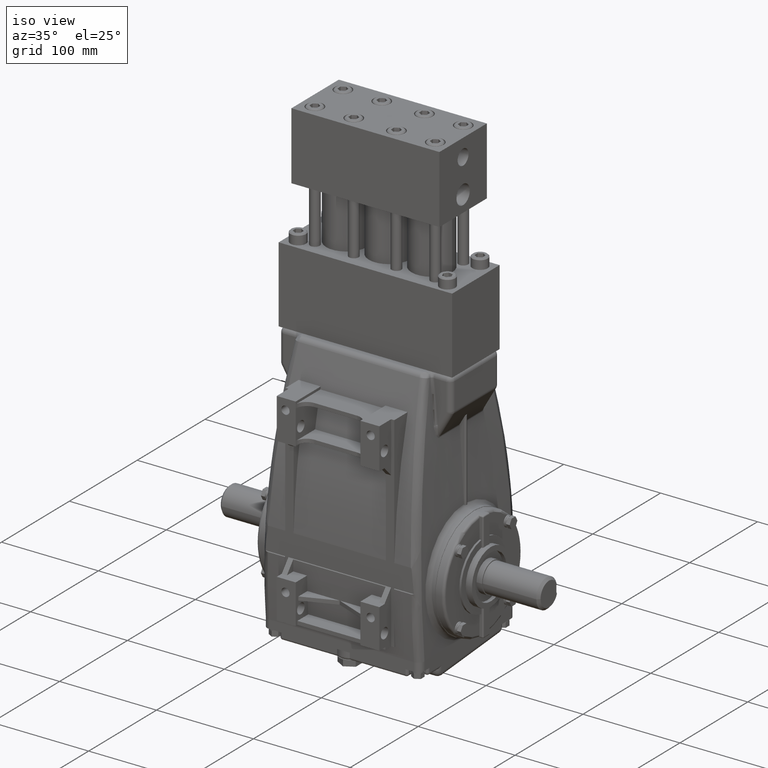
[diagram: clean part render]
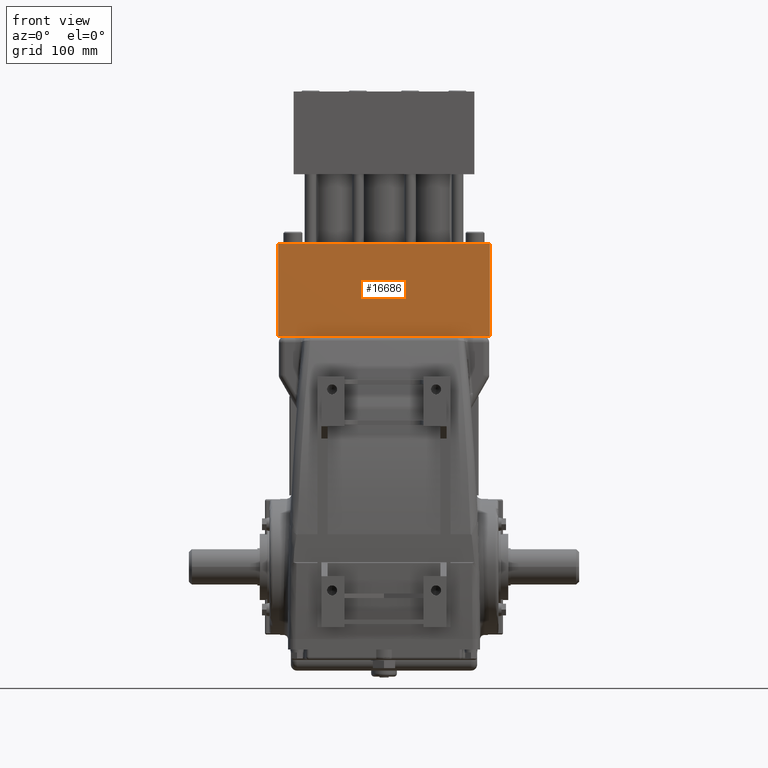
[diagram: tour spotlight — one face highlighted and labeled with its STEP entity id]
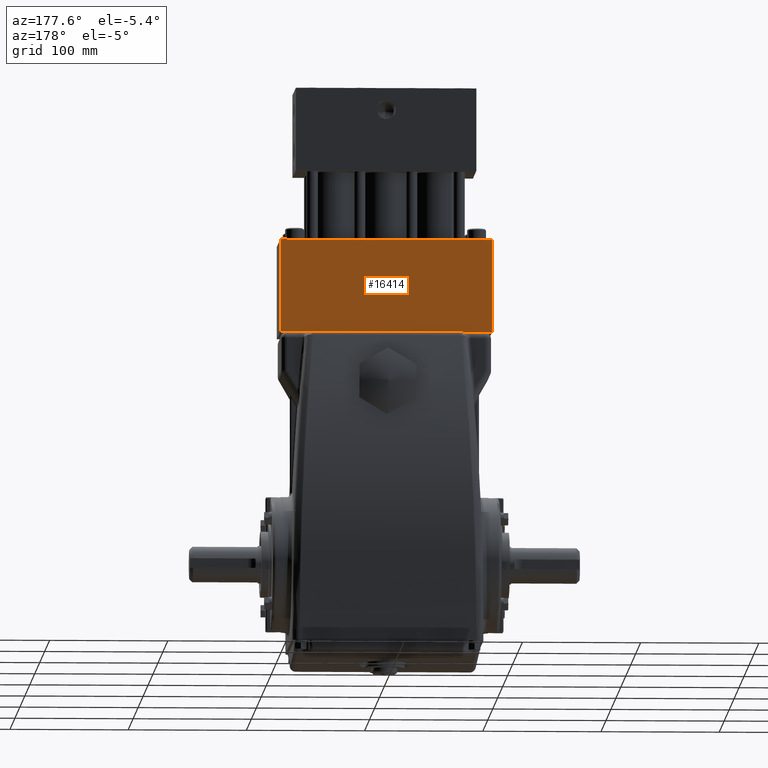
[diagram: tour spotlight — one face highlighted and labeled with its STEP entity id]
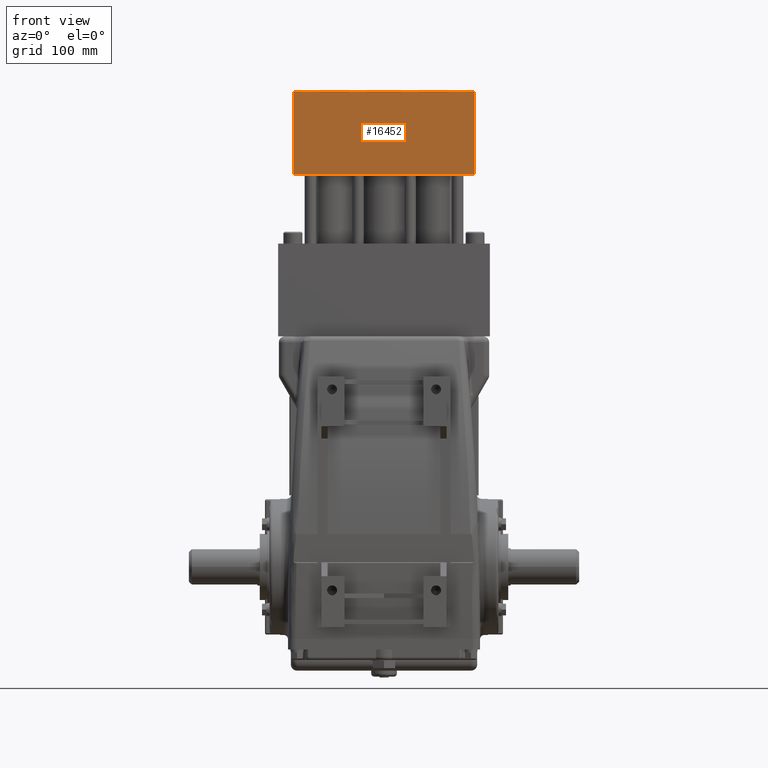
[diagram: tour spotlight — one face highlighted and labeled with its STEP entity id]
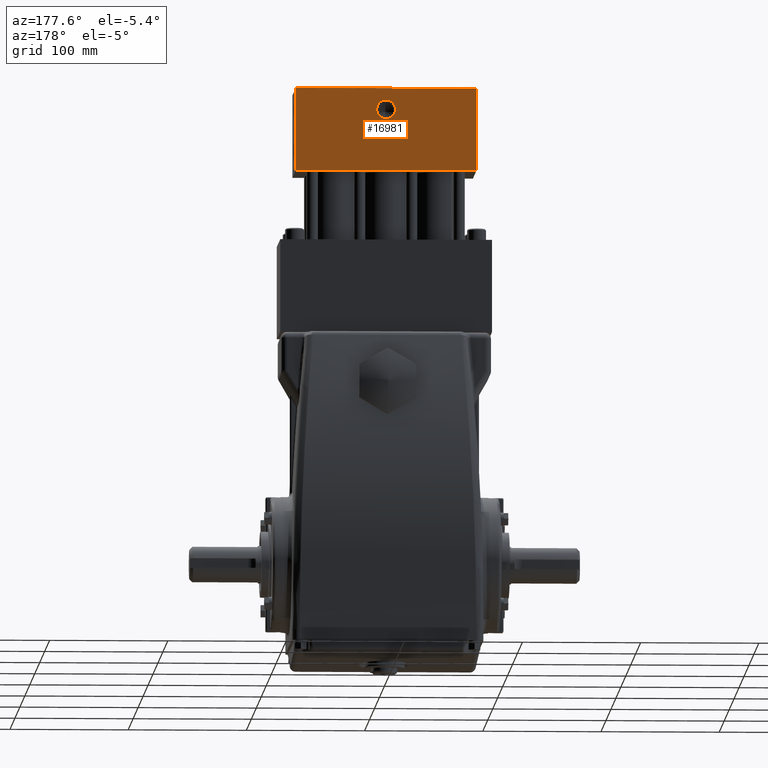
[diagram: tour spotlight — one face highlighted and labeled with its STEP entity id]
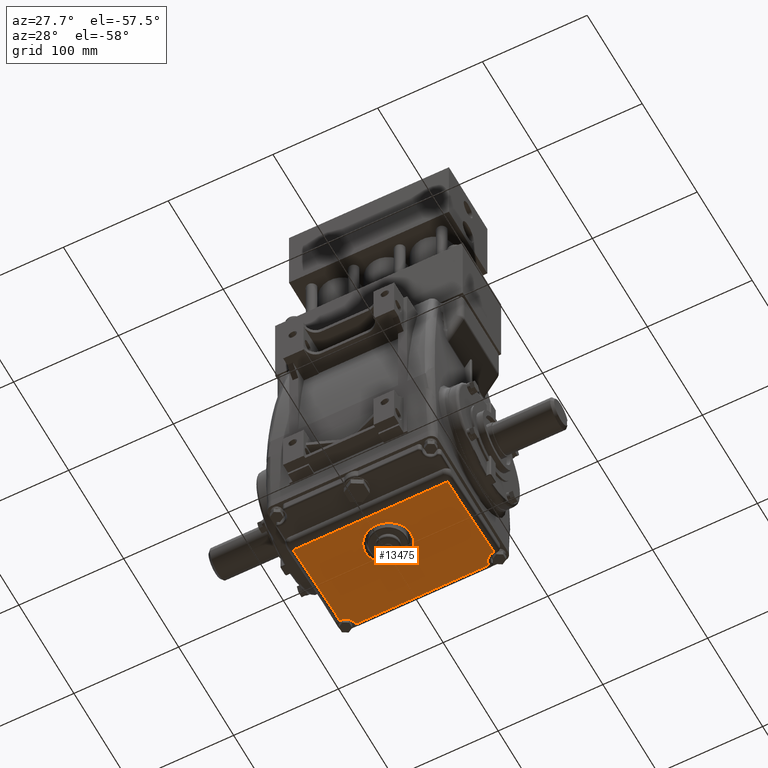
[diagram: tour spotlight — one face highlighted and labeled with its STEP entity id]
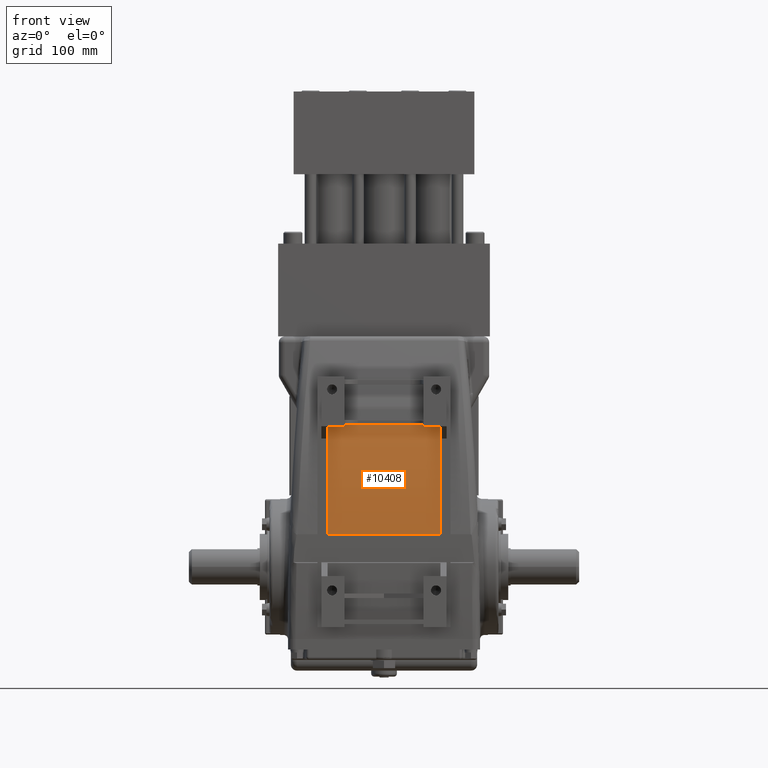
[diagram: tour spotlight — one face highlighted and labeled with its STEP entity id]
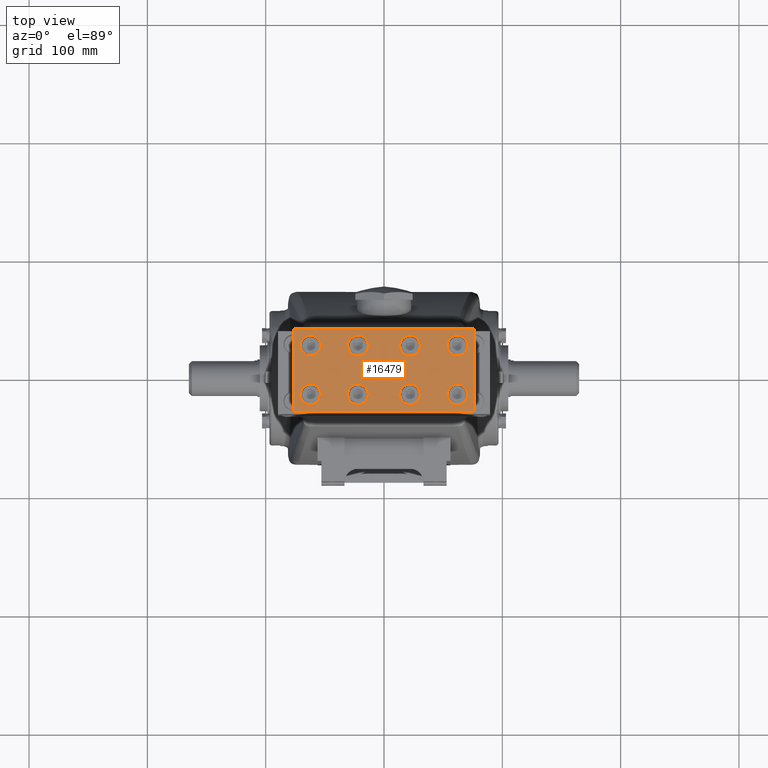
[diagram: tour spotlight — one face highlighted and labeled with its STEP entity id]
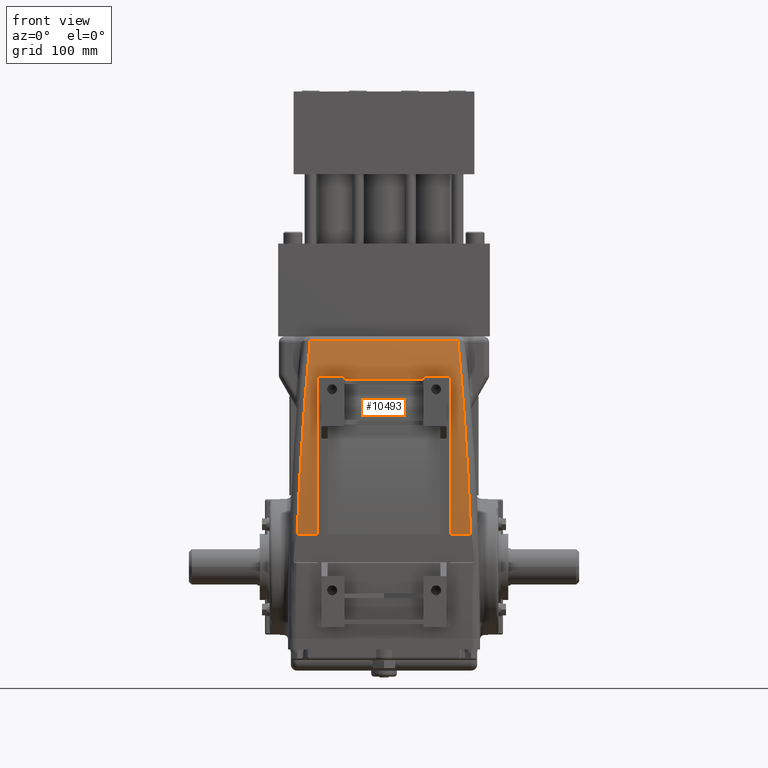
[diagram: tour spotlight — one face highlighted and labeled with its STEP entity id]
A machine part: a face-by-face anatomy tour. The part has 1147 B-rep faces; the first image is the clean iso view, then the 8 largest visible faces are spotlighted one at a time (largest first), each with its STEP entity span.

Face 1 — front view, entity #16686. In plain terms, the highlighted planar face has unit normal (0, -1, 0).
Definition (entity closure, byte-faithful):
#16411 = ORIENTED_EDGE ( 'NONE', *, *, #16615, .F. ) ;
#16522 = EDGE_CURVE ( 'NONE', #16617, #16523, #35112, .T. ) ;
#16523 = VERTEX_POINT ( 'NONE', #34983 ) ;
#16535 = EDGE_CURVE ( 'NONE', #16536, #16616, #35095, .T. ) ;
#16536 = VERTEX_POINT ( 'NONE', #35088 ) ;
#16615 = EDGE_CURVE ( 'NONE', #16616, #16617, #35330, .T. ) ;
#16616 = VERTEX_POINT ( 'NONE', #35326 ) ;
#16617 = VERTEX_POINT ( 'NONE', #35325 ) ;
#16671 = EDGE_CURVE ( 'NONE', #16523, #16536, #35219, .T. ) ;
#16686 = ADVANCED_FACE ( 'NONE', ( #35387 ), #35381, .T. ) ;
#16687 = EDGE_LOOP ( 'NONE', ( #16688, #16689, #16690, #16411 ) ) ;
#16688 = ORIENTED_EDGE ( 'NONE', *, *, #16535, .F. ) ;
#16689 = ORIENTED_EDGE ( 'NONE', *, *, #16671, .F. ) ;
#16690 = ORIENTED_EDGE ( 'NONE', *, *, #16522, .F. ) ;
#34983 = CARTESIAN_POINT ( 'NONE',  ( 3.524999999999999900, -1.375000000000000000, -1.295063990098325800E-015 ) ) ;
#34984 = DIRECTION ( 'NONE',  ( -3.540956569882389300E-016, 0.0000000000000000000, -1.000000000000000000 ) ) ;
#34985 = VECTOR ( 'NONE', #34984, 39.37007874015748100 ) ;
#34986 = CARTESIAN_POINT ( 'NONE',  ( 3.525000000000000800, -1.375000000000000000, 3.085999999999998500 ) ) ;
#35088 = CARTESIAN_POINT ( 'NONE',  ( -3.524999999999999900, -1.375000000000000000, 0.0000000000000000000 ) ) ;
#35089 = DIRECTION ( 'NONE',  ( -0.0000000000000000000, -0.0000000000000000000, 1.000000000000000000 ) ) ;
#35090 = VECTOR ( 'NONE', #35089, 39.37007874015748100 ) ;
#35091 = CARTESIAN_POINT ( 'NONE',  ( -3.524999999999999900, -1.375000000000000000, 3.085999999999999900 ) ) ;
#35095 = LINE ( 'NONE', #35091, #35090 ) ;
#35112 = LINE ( 'NONE', #34986, #34985 ) ;
#35216 = DIRECTION ( 'NONE',  ( -1.000000000000000000, -0.0000000000000000000, 1.836970198721030200E-016 ) ) ;
#35217 = VECTOR ( 'NONE', #35216, 39.37007874015748100 ) ;
#35218 = CARTESIAN_POINT ( 'NONE',  ( -3.524999999999999900, -1.375000000000000000, 0.0000000000000000000 ) ) ;
#35219 = LINE ( 'NONE', #35218, #35217 ) ;
#35325 = CARTESIAN_POINT ( 'NONE',  ( 3.525000000000000800, -1.375000000000000000, 3.085999999999998500 ) ) ;
#35326 = CARTESIAN_POINT ( 'NONE',  ( -3.524999999999999900, -1.375000000000000000, 3.085999999999999900 ) ) ;
#35327 = DIRECTION ( 'NONE',  ( 1.000000000000000000, 0.0000000000000000000, -1.549984677256319500E-016 ) ) ;
#35328 = VECTOR ( 'NONE', #35327, 39.37007874015748100 ) ;
#35329 = CARTESIAN_POINT ( 'NONE',  ( -3.524999999999999900, -1.375000000000000000, 3.085999999999999900 ) ) ;
#35330 = LINE ( 'NONE', #35329, #35328 ) ;
#35377 = DIRECTION ( 'NONE',  ( 0.0000000000000000000, -0.0000000000000000000, -1.000000000000000000 ) ) ;
#35378 = DIRECTION ( 'NONE',  ( 0.0000000000000000000, -1.000000000000000000, 0.0000000000000000000 ) ) ;
#35379 = CARTESIAN_POINT ( 'NONE',  ( -3.524999999999999900, -1.375000000000000000, 0.0000000000000000000 ) ) ;
#35380 = AXIS2_PLACEMENT_3D ( 'NONE', #35379, #35378, #35377 ) ;
#35381 = PLANE ( 'NONE',  #35380 ) ;
#35387 = FACE_OUTER_BOUND ( 'NONE', #16687, .T. ) ;

Face 2 — auxiliary view, entity #16414. In plain terms, the highlighted planar face has unit normal (0, -1, 0).
Definition (entity closure, byte-faithful):
#16414 = ADVANCED_FACE ( 'NONE', ( #34850 ), #34846, .F. ) ;
#16415 = ORIENTED_EDGE ( 'NONE', *, *, #16515, .T. ) ;
#16416 = ORIENTED_EDGE ( 'NONE', *, *, #16583, .T. ) ;
#16515 = EDGE_CURVE ( 'NONE', #16516, #16584, #34969, .T. ) ;
#16516 = VERTEX_POINT ( 'NONE', #34965 ) ;
#16526 = VERTEX_POINT ( 'NONE', #34978 ) ;
#16554 = VERTEX_POINT ( 'NONE', #35020 ) ;
#16583 = EDGE_CURVE ( 'NONE', #16584, #16554, #35408, .T. ) ;
#16584 = VERTEX_POINT ( 'NONE', #35404 ) ;
#16666 = EDGE_CURVE ( 'NONE', #16554, #16526, #35351, .T. ) ;
#16674 = EDGE_CURVE ( 'NONE', #16526, #16516, #35215, .T. ) ;
#16675 = EDGE_LOOP ( 'NONE', ( #16415, #16416, #16684, #16685 ) ) ;
#16684 = ORIENTED_EDGE ( 'NONE', *, *, #16666, .T. ) ;
#16685 = ORIENTED_EDGE ( 'NONE', *, *, #16674, .T. ) ;
#34845 = AXIS2_PLACEMENT_3D ( 'NONE', #34950, #34949, #34948 ) ;
#34846 = PLANE ( 'NONE',  #34845 ) ;
#34850 = FACE_OUTER_BOUND ( 'NONE', #16675, .T. ) ;
#34948 = DIRECTION ( 'NONE',  ( 0.0000000000000000000, -0.0000000000000000000, -1.000000000000000000 ) ) ;
#34949 = DIRECTION ( 'NONE',  ( 0.0000000000000000000, -1.000000000000000000, 0.0000000000000000000 ) ) ;
#34950 = CARTESIAN_POINT ( 'NONE',  ( -3.524999999999999900, 1.375000000000000000, 0.0000000000000000000 ) ) ;
#34965 = CARTESIAN_POINT ( 'NONE',  ( -3.524999999999999900, 1.375000000000000000, 0.0000000000000000000 ) ) ;
#34966 = DIRECTION ( 'NONE',  ( -0.0000000000000000000, -0.0000000000000000000, 1.000000000000000000 ) ) ;
#34967 = VECTOR ( 'NONE', #34966, 39.37007874015748100 ) ;
#34968 = CARTESIAN_POINT ( 'NONE',  ( -3.524999999999999900, 1.375000000000000000, 3.085999999999999900 ) ) ;
#34969 = LINE ( 'NONE', #34968, #34967 ) ;
#34978 = CARTESIAN_POINT ( 'NONE',  ( 3.524999999999999900, 1.375000000000000000, -1.295063990098325800E-015 ) ) ;
#35020 = CARTESIAN_POINT ( 'NONE',  ( 3.525000000000000800, 1.375000000000000000, 3.085999999999998500 ) ) ;
#35213 = DIRECTION ( 'NONE',  ( -1.000000000000000000, -0.0000000000000000000, 1.836970198721030200E-016 ) ) ;
#35214 = CARTESIAN_POINT ( 'NONE',  ( -3.524999999999999900, 1.375000000000000000, 0.0000000000000000000 ) ) ;
#35215 = LINE ( 'NONE', #35214, #35389 ) ;
#35348 = DIRECTION ( 'NONE',  ( -3.540956569882389300E-016, 0.0000000000000000000, -1.000000000000000000 ) ) ;
#35349 = VECTOR ( 'NONE', #35348, 39.37007874015748100 ) ;
#35350 = CARTESIAN_POINT ( 'NONE',  ( 3.525000000000000800, 1.375000000000000000, 3.085999999999998500 ) ) ;
#35351 = LINE ( 'NONE', #35350, #35349 ) ;
#35389 = VECTOR ( 'NONE', #35213, 39.37007874015748100 ) ;
#35404 = CARTESIAN_POINT ( 'NONE',  ( -3.524999999999999900, 1.375000000000000000, 3.085999999999999900 ) ) ;
#35405 = DIRECTION ( 'NONE',  ( 1.000000000000000000, 0.0000000000000000000, -1.549984677256319500E-016 ) ) ;
#35406 = VECTOR ( 'NONE', #35405, 39.37007874015748100 ) ;
#35407 = CARTESIAN_POINT ( 'NONE',  ( -3.524999999999999900, 1.375000000000000000, 3.085999999999999900 ) ) ;
#35408 = LINE ( 'NONE', #35407, #35406 ) ;

Face 3 — front view, entity #16452. In plain terms, the highlighted planar face has unit normal (0, 1, 0).
Definition (entity closure, byte-faithful):
#16448 = EDGE_CURVE ( 'NONE', #16542, #16464, #35135, .T. ) ;
#16452 = ADVANCED_FACE ( 'NONE', ( #35078 ), #35077, .F. ) ;
#16453 = EDGE_LOOP ( 'NONE', ( #16454, #16455, #16457, #16632 ) ) ;
#16454 = ORIENTED_EDGE ( 'NONE', *, *, #16887, .T. ) ;
#16455 = ORIENTED_EDGE ( 'NONE', *, *, #16456, .F. ) ;
#16456 = EDGE_CURVE ( 'NONE', #16545, #16629, #35002, .T. ) ;
#16457 = ORIENTED_EDGE ( 'NONE', *, *, #16544, .F. ) ;
#16464 = VERTEX_POINT ( 'NONE', #35168 ) ;
#16542 = VERTEX_POINT ( 'NONE', #35032 ) ;
#16544 = EDGE_CURVE ( 'NONE', #16542, #16545, #35031, .T. ) ;
#16545 = VERTEX_POINT ( 'NONE', #35027 ) ;
#16629 = VERTEX_POINT ( 'NONE', #35251 ) ;
#16632 = ORIENTED_EDGE ( 'NONE', *, *, #16448, .T. ) ;
#16887 = EDGE_CURVE ( 'NONE', #16464, #16629, #35797, .T. ) ;
#35000 = DIRECTION ( 'NONE',  ( -0.0000000000000000000, -0.0000000000000000000, -1.000000000000000000 ) ) ;
#35001 = CARTESIAN_POINT ( 'NONE',  ( 3.006500000000000400, -1.375000000000000000, 8.147000000000000200 ) ) ;
#35002 = LINE ( 'NONE', #35001, #35013 ) ;
#35013 = VECTOR ( 'NONE', #35000, 39.37007874015748100 ) ;
#35027 = CARTESIAN_POINT ( 'NONE',  ( 3.006500000000000400, -1.375000000000000000, 8.147000000000000200 ) ) ;
#35028 = DIRECTION ( 'NONE',  ( 1.000000000000000000, 0.0000000000000000000, 0.0000000000000000000 ) ) ;
#35029 = VECTOR ( 'NONE', #35028, 39.37007874015748100 ) ;
#35030 = CARTESIAN_POINT ( 'NONE',  ( -3.006500000000000000, -1.375000000000000000, 8.147000000000000200 ) ) ;
#35031 = LINE ( 'NONE', #35030, #35029 ) ;
#35032 = CARTESIAN_POINT ( 'NONE',  ( -3.006500000000000000, -1.375000000000000000, 8.147000000000000200 ) ) ;
#35076 = AXIS2_PLACEMENT_3D ( 'NONE', #35108, #35107, #35106 ) ;
#35077 = PLANE ( 'NONE',  #35076 ) ;
#35078 = FACE_OUTER_BOUND ( 'NONE', #16453, .T. ) ;
#35106 = DIRECTION ( 'NONE',  ( 0.0000000000000000000, -0.0000000000000000000, 1.000000000000000000 ) ) ;
#35107 = DIRECTION ( 'NONE',  ( 0.0000000000000000000, 1.000000000000000000, 0.0000000000000000000 ) ) ;
#35108 = CARTESIAN_POINT ( 'NONE',  ( -3.006500000000000000, -1.375000000000000000, 8.147000000000000200 ) ) ;
#35132 = DIRECTION ( 'NONE',  ( -0.0000000000000000000, -0.0000000000000000000, -1.000000000000000000 ) ) ;
#35133 = VECTOR ( 'NONE', #35132, 39.37007874015748100 ) ;
#35134 = CARTESIAN_POINT ( 'NONE',  ( -3.006500000000000000, -1.375000000000000000, 8.147000000000000200 ) ) ;
#35135 = LINE ( 'NONE', #35134, #35133 ) ;
#35168 = CARTESIAN_POINT ( 'NONE',  ( -3.006500000000000000, -1.375000000000000000, 5.393999999999999200 ) ) ;
#35251 = CARTESIAN_POINT ( 'NONE',  ( 3.006500000000000400, -1.375000000000000000, 5.393999999999999200 ) ) ;
#35794 = DIRECTION ( 'NONE',  ( 1.000000000000000000, 0.0000000000000000000, 0.0000000000000000000 ) ) ;
#35795 = VECTOR ( 'NONE', #35794, 39.37007874015748100 ) ;
#35796 = CARTESIAN_POINT ( 'NONE',  ( -3.006500000000000000, -1.375000000000000000, 5.393999999999999200 ) ) ;
#35797 = LINE ( 'NONE', #35796, #35795 ) ;

Face 4 — auxiliary view, entity #16981. In plain terms, the highlighted planar face has unit normal (0, -1, 0).
Definition (entity closure, byte-faithful):
#16424 = VERTEX_POINT ( 'NONE', #34865 ) ;
#16426 = EDGE_CURVE ( 'NONE', #16424, #16541, #34864, .T. ) ;
#16451 = EDGE_CURVE ( 'NONE', #16541, #16463, #35105, .T. ) ;
#16463 = VERTEX_POINT ( 'NONE', #35169 ) ;
#16466 = EDGE_CURVE ( 'NONE', #16467, #16463, #35167, .T. ) ;
#16467 = VERTEX_POINT ( 'NONE', #35085 ) ;
#16541 = VERTEX_POINT ( 'NONE', #35033 ) ;
#16968 = ORIENTED_EDGE ( 'NONE', *, *, #16988, .T. ) ;
#16979 = ORIENTED_EDGE ( 'NONE', *, *, #16451, .F. ) ;
#16980 = ORIENTED_EDGE ( 'NONE', *, *, #16426, .F. ) ;
#16981 = ADVANCED_FACE ( 'NONE', ( #35667, #35666 ), #35671, .F. ) ;
#16982 = ORIENTED_EDGE ( 'NONE', *, *, #16984, .F. ) ;
#16984 = EDGE_CURVE ( 'NONE', #32712, #32709, #35764, .T. ) ;
#16985 = ORIENTED_EDGE ( 'NONE', *, *, #32711, .F. ) ;
#16986 = EDGE_LOOP ( 'NONE', ( #16987, #16979, #16980, #16968 ) ) ;
#16987 = ORIENTED_EDGE ( 'NONE', *, *, #16466, .T. ) ;
#16988 = EDGE_CURVE ( 'NONE', #16424, #16467, #35911, .T. ) ;
#16991 = EDGE_LOOP ( 'NONE', ( #16982, #16985 ) ) ;
#24649 = CARTESIAN_POINT ( 'NONE',  ( -6.829619984160658000E-017, 1.375000000000000200, 7.750604000000000000 ) ) ;
#24650 = DIRECTION ( 'NONE',  ( 0.0000000000000000000, 0.0000000000000000000, 1.000000000000000000 ) ) ;
#24652 = DIRECTION ( 'NONE',  ( -0.0000000000000000000, 1.000000000000000000, -0.0000000000000000000 ) ) ;
#24654 = CARTESIAN_POINT ( 'NONE',  ( -6.829619984160658000E-017, 1.375000000000000200, 7.437000000000000300 ) ) ;
#24657 = AXIS2_PLACEMENT_3D ( 'NONE', #24654, #24652, #24650 ) ;
#24659 = CIRCLE ( 'NONE', #24657, 0.3136039999999994900 ) ;
#24667 = CARTESIAN_POINT ( 'NONE',  ( -2.989205474319530300E-017, 1.375000000000000200, 7.123396000000001400 ) ) ;
#32709 = VERTEX_POINT ( 'NONE', #24667 ) ;
#32711 = EDGE_CURVE ( 'NONE', #32709, #32712, #24659, .T. ) ;
#32712 = VERTEX_POINT ( 'NONE', #24649 ) ;
#34822 = DIRECTION ( 'NONE',  ( -1.000000000000000000, -4.543236310767110400E-017, -0.0000000000000000000 ) ) ;
#34823 = VECTOR ( 'NONE', #34822, 39.37007874015748100 ) ;
#34863 = CARTESIAN_POINT ( 'NONE',  ( -3.006500000000000000, 1.375000000000000000, 8.147000000000000200 ) ) ;
#34864 = LINE ( 'NONE', #34863, #34823 ) ;
#34865 = CARTESIAN_POINT ( 'NONE',  ( 3.006500000000000000, 1.375000000000000200, 8.147000000000000200 ) ) ;
#35033 = CARTESIAN_POINT ( 'NONE',  ( -3.006500000000000000, 1.375000000000000000, 8.147000000000000200 ) ) ;
#35079 = DIRECTION ( 'NONE',  ( -0.0000000000000000000, -0.0000000000000000000, -1.000000000000000000 ) ) ;
#35080 = VECTOR ( 'NONE', #35079, 39.37007874015748100 ) ;
#35085 = CARTESIAN_POINT ( 'NONE',  ( 3.006500000000000000, 1.375000000000000200, 5.393999999999999200 ) ) ;
#35086 = VECTOR ( 'NONE', #35165, 39.37007874015748100 ) ;
#35104 = CARTESIAN_POINT ( 'NONE',  ( -3.006500000000000000, 1.375000000000000000, 8.147000000000000200 ) ) ;
#35105 = LINE ( 'NONE', #35104, #35080 ) ;
#35165 = DIRECTION ( 'NONE',  ( -1.000000000000000000, -4.543236310767110400E-017, -0.0000000000000000000 ) ) ;
#35166 = CARTESIAN_POINT ( 'NONE',  ( -3.006500000000000000, 1.375000000000000000, 5.393999999999999200 ) ) ;
#35167 = LINE ( 'NONE', #35166, #35086 ) ;
#35169 = CARTESIAN_POINT ( 'NONE',  ( -3.006500000000000000, 1.375000000000000000, 5.393999999999999200 ) ) ;
#35663 = DIRECTION ( 'NONE',  ( 4.543236310767110400E-017, -1.000000000000000000, 0.0000000000000000000 ) ) ;
#35664 = CARTESIAN_POINT ( 'NONE',  ( -3.006500000000000000, 1.375000000000000000, 8.147000000000000200 ) ) ;
#35665 = AXIS2_PLACEMENT_3D ( 'NONE', #35664, #35663, #35765 ) ;
#35666 = FACE_OUTER_BOUND ( 'NONE', #16986, .T. ) ;
#35667 = FACE_BOUND ( 'NONE', #16991, .T. ) ;
#35671 = PLANE ( 'NONE',  #35665 ) ;
#35761 = DIRECTION ( 'NONE',  ( 0.0000000000000000000, 0.0000000000000000000, 1.000000000000000000 ) ) ;
#35762 = DIRECTION ( 'NONE',  ( -0.0000000000000000000, 1.000000000000000000, -0.0000000000000000000 ) ) ;
#35763 = AXIS2_PLACEMENT_3D ( 'NONE', #35766, #35762, #35761 ) ;
#35764 = CIRCLE ( 'NONE', #35763, 0.3136039999999994900 ) ;
#35765 = DIRECTION ( 'NONE',  ( 1.000000000000000000, 4.543236310767110400E-017, 0.0000000000000000000 ) ) ;
#35766 = CARTESIAN_POINT ( 'NONE',  ( -6.829619984160658000E-017, 1.375000000000000200, 7.437000000000000300 ) ) ;
#35828 = VECTOR ( 'NONE', #35953, 39.37007874015748100 ) ;
#35911 = LINE ( 'NONE', #36004, #35828 ) ;
#35953 = DIRECTION ( 'NONE',  ( -0.0000000000000000000, -0.0000000000000000000, -1.000000000000000000 ) ) ;
#36004 = CARTESIAN_POINT ( 'NONE',  ( 3.006500000000000000, 1.375000000000000200, 8.147000000000000200 ) ) ;

Face 5 — auxiliary view, entity #13475. In plain terms, the highlighted planar face has unit normal (0, -0.0837, 0.9965).
Definition (entity closure, byte-faithful):
#10473 = VERTEX_POINT ( 'NONE', #22806 ) ;
#10541 = VERTEX_POINT ( 'NONE', #23499 ) ;
#13381 = VERTEX_POINT ( 'NONE', #34072 ) ;
#13391 = ORIENTED_EDGE ( 'NONE', *, *, #13392, .T. ) ;
#13392 = EDGE_CURVE ( 'NONE', #13381, #10541, #34122, .T. ) ;
#13393 = ORIENTED_EDGE ( 'NONE', *, *, #13575, .T. ) ;
#13397 = EDGE_CURVE ( 'NONE', #18513, #13425, #34130, .T. ) ;
#13399 = ORIENTED_EDGE ( 'NONE', *, *, #18519, .T. ) ;
#13400 = EDGE_CURVE ( 'NONE', #19420, #13381, #34186, .T. ) ;
#13401 = ORIENTED_EDGE ( 'NONE', *, *, #13402, .T. ) ;
#13402 = EDGE_CURVE ( 'NONE', #10473, #19753, #34139, .T. ) ;
#13403 = ORIENTED_EDGE ( 'NONE', *, *, #18514, .T. ) ;
#13404 = ORIENTED_EDGE ( 'NONE', *, *, #13397, .T. ) ;
#13411 = ORIENTED_EDGE ( 'NONE', *, *, #13400, .T. ) ;
#13414 = EDGE_LOOP ( 'NONE', ( #13415, #13416 ) ) ;
#13415 = ORIENTED_EDGE ( 'NONE', *, *, #19810, .T. ) ;
#13416 = ORIENTED_EDGE ( 'NONE', *, *, #13417, .T. ) ;
#13417 = EDGE_CURVE ( 'NONE', #19768, #19807, #34174, .T. ) ;
#13421 = EDGE_LOOP ( 'NONE', ( #13422, #13399, #13411, #13391, #13393, #13401, #13403, #13404 ) ) ;
#13422 = ORIENTED_EDGE ( 'NONE', *, *, #13423, .F. ) ;
#13423 = EDGE_CURVE ( 'NONE', #18516, #13425, #34368, .T. ) ;
#13425 = VERTEX_POINT ( 'NONE', #34337 ) ;
#13475 = ADVANCED_FACE ( 'NONE', ( #34449, #34448 ), #34429, .F. ) ;
#13575 = EDGE_CURVE ( 'NONE', #10541, #10473, #34364, .T. ) ;
#18513 = VERTEX_POINT ( 'NONE', #37906 ) ;
#18514 = EDGE_CURVE ( 'NONE', #19753, #18513, #38053, .T. ) ;
#18516 = VERTEX_POINT ( 'NONE', #38054 ) ;
#18519 = EDGE_CURVE ( 'NONE', #18516, #19420, #38033, .T. ) ;
#19420 = VERTEX_POINT ( 'NONE', #19457 ) ;
#19457 = CARTESIAN_POINT ( 'NONE',  ( 2.893500000000000000, 2.068367784333229300, -3.168206099610820600 ) ) ;
#19753 = VERTEX_POINT ( 'NONE', #19832 ) ;
#19768 = VERTEX_POINT ( 'NONE', #19890 ) ;
#19807 = VERTEX_POINT ( 'NONE', #21061 ) ;
#19810 = EDGE_CURVE ( 'NONE', #19807, #19768, #21059, .T. ) ;
#19832 = CARTESIAN_POINT ( 'NONE',  ( -2.900000000000000400, 2.068420600320140400, -3.168201664528484100 ) ) ;
#19890 = CARTESIAN_POINT ( 'NONE',  ( 1.040915400749020600E-016, 0.8583677843332308000, -3.269812638475884500 ) ) ;
#21053 = CARTESIAN_POINT ( 'NONE',  ( 1.040915400749020600E-016, 0.8583677843332308000, -3.269812638475884500 ) ) ;
#21054 = CARTESIAN_POINT ( 'NONE',  ( 1.699999999999999700, 0.8583677843332305800, -3.269812638475884500 ) ) ;
#21055 = CARTESIAN_POINT ( 'NONE',  ( 1.699999999999999700, -0.8416322156667690500, -3.412565626963990800 ) ) ;
#21056 = CARTESIAN_POINT ( 'NONE',  ( 0.0000000000000000000, -0.8416322156667690500, -3.412565626963990400 ) ) ;
#21059 =( BOUNDED_CURVE ( )  B_SPLINE_CURVE ( 3, ( #21056, #21055, #21054, #21053 ),
 .UNSPECIFIED., .F., .F. ) 
 B_SPLINE_CURVE_WITH_KNOTS ( ( 4, 4 ),
 ( 0.0000000000000000000, 3.141592653589793100 ),
 .UNSPECIFIED. ) 
 CURVE ( )  GEOMETRIC_REPRESENTATION_ITEM ( )  RATIONAL_B_SPLINE_CURVE ( ( 1.000000000000000000, 0.3333333333333333700, 0.3333333333333333700, 1.000000000000000000 ) ) 
 REPRESENTATION_ITEM ( '' )  );
#21061 = CARTESIAN_POINT ( 'NONE',  ( 0.0000000000000000000, -0.8416322156667690500, -3.412565626963990400 ) ) ;
#22806 = CARTESIAN_POINT ( 'NONE',  ( -2.900000000000000400, -1.274896647000307400, -3.448947857774851100 ) ) ;
#23499 = CARTESIAN_POINT ( 'NONE',  ( 2.900000000000000400, -1.274896647000307400, -3.448947857774851100 ) ) ;
#33973 = CARTESIAN_POINT ( 'NONE',  ( -2.493871596370264700, 2.451130063708021100, -3.136064652986543200 ) ) ;
#33976 = CARTESIAN_POINT ( 'NONE',  ( -2.667117107564619200, 2.068367784333228900, -3.168206099610821000 ) ) ;
#33977 = CARTESIAN_POINT ( 'NONE',  ( -2.893499999999996000, 2.068367784333229300, -3.168206099610820600 ) ) ;
#33980 = CARTESIAN_POINT ( 'NONE',  ( -2.503627409005583400, 2.224957478925444500, -3.155056895569950700 ) ) ;
#34072 = CARTESIAN_POINT ( 'NONE',  ( 2.900000000000000400, 2.068420600320140400, -3.168201664528484100 ) ) ;
#34119 = DIRECTION ( 'NONE',  ( -0.0000000000000000000, -0.9964928592495048100, -0.08367784333230865500 ) ) ;
#34120 = VECTOR ( 'NONE', #34119, 39.37007874015748900 ) ;
#34121 = CARTESIAN_POINT ( 'NONE',  ( 2.900000000000000400, -1.274896647000307400, -3.448947857774851100 ) ) ;
#34122 = LINE ( 'NONE', #34121, #34120 ) ;
#34130 =( BOUNDED_CURVE ( )  B_SPLINE_CURVE ( 3, ( #33977, #33976, #33980, #33973 ),
 .UNSPECIFIED., .F., .T. ) 
 B_SPLINE_CURVE_WITH_KNOTS ( ( 4, 4 ),
 ( 0.0000000000000000000, 1.527688675532678000 ),
 .UNSPECIFIED. ) 
 CURVE ( )  GEOMETRIC_REPRESENTATION_ITEM ( )  RATIONAL_B_SPLINE_CURVE ( ( 1.000000000000000000, 0.8147881429267895800, 0.8147881429267895800, 1.000000000000000000 ) ) 
 REPRESENTATION_ITEM ( '' )  );
#34136 = DIRECTION ( 'NONE',  ( 0.0000000000000000000, 0.9964928592495048100, 0.08367784333230865500 ) ) ;
#34137 = VECTOR ( 'NONE', #34136, 39.37007874015748900 ) ;
#34138 = CARTESIAN_POINT ( 'NONE',  ( -2.900000000000000400, 2.451130063708022000, -3.136064652986543200 ) ) ;
#34139 = LINE ( 'NONE', #34138, #34137 ) ;
#34149 = CARTESIAN_POINT ( 'NONE',  ( 2.893500000000000000, 2.068367784333229300, -3.168206099610820600 ) ) ;
#34167 = CARTESIAN_POINT ( 'NONE',  ( 2.900000000000000400, 2.068420600320140400, -3.168201664528484100 ) ) ;
#34168 = CARTESIAN_POINT ( 'NONE',  ( 2.897833500225969900, 2.068385390049648700, -3.168204621217507000 ) ) ;
#34169 = CARTESIAN_POINT ( 'NONE',  ( 2.895666785876366900, 2.068367784333229300, -3.168206099610820600 ) ) ;
#34174 =( BOUNDED_CURVE ( )  B_SPLINE_CURVE ( 3, ( #34224, #34223, #34222, #34221 ),
 .UNSPECIFIED., .F., .T. ) 
 B_SPLINE_CURVE_WITH_KNOTS ( ( 4, 4 ),
 ( 3.141592653589793100, 6.283185307179586200 ),
 .UNSPECIFIED. ) 
 CURVE ( )  GEOMETRIC_REPRESENTATION_ITEM ( )  RATIONAL_B_SPLINE_CURVE ( ( 1.000000000000000000, 0.3333333333333333700, 0.3333333333333333700, 1.000000000000000000 ) ) 
 REPRESENTATION_ITEM ( '' )  );
#34186 =( BOUNDED_CURVE ( )  B_SPLINE_CURVE ( 3, ( #34149, #34169, #34168, #34167 ),
 .UNSPECIFIED., .F., .T. ) 
 B_SPLINE_CURVE_WITH_KNOTS ( ( 4, 4 ),
 ( 0.0000000000000000000, 0.01625071525426656500 ),
 .UNSPECIFIED. ) 
 CURVE ( )  GEOMETRIC_REPRESENTATION_ITEM ( )  RATIONAL_B_SPLINE_CURVE ( ( 1.000000000000000000, 0.9999779929755554500, 0.9999779929755554500, 1.000000000000000000 ) ) 
 REPRESENTATION_ITEM ( '' )  );
#34221 = CARTESIAN_POINT ( 'NONE',  ( 0.0000000000000000000, -0.8416322156667690500, -3.412565626963990400 ) ) ;
#34222 = CARTESIAN_POINT ( 'NONE',  ( -1.699999999999999700, -0.8416322156667690500, -3.412565626963990800 ) ) ;
#34223 = CARTESIAN_POINT ( 'NONE',  ( -1.699999999999999700, 0.8583677843332312400, -3.269812638475884500 ) ) ;
#34224 = CARTESIAN_POINT ( 'NONE',  ( 1.040915400749020600E-016, 0.8583677843332308000, -3.269812638475884500 ) ) ;
#34337 = CARTESIAN_POINT ( 'NONE',  ( -2.493871596370264700, 2.451130063708021100, -3.136064652986543200 ) ) ;
#34361 = DIRECTION ( 'NONE',  ( -1.000000000000000000, -0.0000000000000000000, -0.0000000000000000000 ) ) ;
#34362 = VECTOR ( 'NONE', #34361, 39.37007874015748100 ) ;
#34363 = CARTESIAN_POINT ( 'NONE',  ( 3.100000000000000100, -1.274896647000307400, -3.448947857774851100 ) ) ;
#34364 = LINE ( 'NONE', #34363, #34362 ) ;
#34368 = LINE ( 'NONE', #34377, #34376 ) ;
#34375 = DIRECTION ( 'NONE',  ( -1.000000000000000000, -0.0000000000000000000, -0.0000000000000000000 ) ) ;
#34376 = VECTOR ( 'NONE', #34375, 39.37007874015748100 ) ;
#34377 = CARTESIAN_POINT ( 'NONE',  ( 3.100000000000000100, 2.451130063708021100, -3.136064652986543200 ) ) ;
#34425 = DIRECTION ( 'NONE',  ( 0.0000000000000000000, -0.9964928592495048100, -0.08367784333230865500 ) ) ;
#34426 = DIRECTION ( 'NONE',  ( 0.0000000000000000000, -0.08367784333230866800, 0.9964928592495049300 ) ) ;
#34427 = CARTESIAN_POINT ( 'NONE',  ( 3.100000000000000100, -1.274896647000307400, -3.448947857774851100 ) ) ;
#34428 = AXIS2_PLACEMENT_3D ( 'NONE', #34427, #34426, #34425 ) ;
#34429 = PLANE ( 'NONE',  #34428 ) ;
#34448 = FACE_OUTER_BOUND ( 'NONE', #13421, .T. ) ;
#34449 = FACE_BOUND ( 'NONE', #13414, .T. ) ;
#37906 = CARTESIAN_POINT ( 'NONE',  ( -2.893499999999996000, 2.068367784333229300, -3.168206099610820600 ) ) ;
#38029 = CARTESIAN_POINT ( 'NONE',  ( 2.893500000000000000, 2.068367784333229300, -3.168206099610820600 ) ) ;
#38030 = CARTESIAN_POINT ( 'NONE',  ( 2.667117107564623600, 2.068367784333228900, -3.168206099610821000 ) ) ;
#38031 = CARTESIAN_POINT ( 'NONE',  ( 2.503627409005587900, 2.224957478925444500, -3.155056895569950700 ) ) ;
#38032 = CARTESIAN_POINT ( 'NONE',  ( 2.493871596370269100, 2.451130063708021100, -3.136064652986543200 ) ) ;
#38033 =( BOUNDED_CURVE ( )  B_SPLINE_CURVE ( 3, ( #38032, #38031, #38030, #38029 ),
 .UNSPECIFIED., .F., .T. ) 
 B_SPLINE_CURVE_WITH_KNOTS ( ( 4, 4 ),
 ( 4.755496631646908100, 6.283185307179586200 ),
 .UNSPECIFIED. ) 
 CURVE ( )  GEOMETRIC_REPRESENTATION_ITEM ( )  RATIONAL_B_SPLINE_CURVE ( ( 1.000000000000000000, 0.8147881429267895800, 0.8147881429267895800, 1.000000000000000000 ) ) 
 REPRESENTATION_ITEM ( '' )  );
#38034 = CARTESIAN_POINT ( 'NONE',  ( -2.893499999999996000, 2.068367784333229300, -3.168206099610820600 ) ) ;
#38050 = CARTESIAN_POINT ( 'NONE',  ( -2.895666785876363400, 2.068367784333229300, -3.168206099610820600 ) ) ;
#38051 = CARTESIAN_POINT ( 'NONE',  ( -2.897833500225968100, 2.068385390049648700, -3.168204621217507000 ) ) ;
#38052 = CARTESIAN_POINT ( 'NONE',  ( -2.900000000000000400, 2.068420600320140400, -3.168201664528484100 ) ) ;
#38053 =( BOUNDED_CURVE ( )  B_SPLINE_CURVE ( 3, ( #38052, #38051, #38050, #38034 ),
 .UNSPECIFIED., .F., .T. ) 
 B_SPLINE_CURVE_WITH_KNOTS ( ( 4, 4 ),
 ( 6.266934591925308800, 6.283185307179586200 ),
 .UNSPECIFIED. ) 
 CURVE ( )  GEOMETRIC_REPRESENTATION_ITEM ( )  RATIONAL_B_SPLINE_CURVE ( ( 1.000000000000000000, 0.9999779929755554500, 0.9999779929755554500, 1.000000000000000000 ) ) 
 REPRESENTATION_ITEM ( '' )  );
#38054 = CARTESIAN_POINT ( 'NONE',  ( 2.493871596370269100, 2.451130063708021100, -3.136064652986543200 ) ) ;

Face 6 — front view, entity #10408. In plain terms, the highlighted cylindrical surface (partial cylindrical patch) has radius 634.291 mm, axis along (-1, -0, -0).
Definition (entity closure, byte-faithful):
#10403 = EDGE_LOOP ( 'NONE', ( #10409, #10410, #10413, #10414, #10467, #10694, #10697, #11138 ) ) ;
#10408 = ADVANCED_FACE ( 'NONE', ( #22755 ), #22731, .T. ) ;
#10409 = ORIENTED_EDGE ( 'NONE', *, *, #10705, .F. ) ;
#10410 = ORIENTED_EDGE ( 'NONE', *, *, #10411, .T. ) ;
#10411 = EDGE_CURVE ( 'NONE', #10797, #10446, #22726, .T. ) ;
#10413 = ORIENTED_EDGE ( 'NONE', *, *, #10445, .F. ) ;
#10414 = ORIENTED_EDGE ( 'NONE', *, *, #10774, .F. ) ;
#10445 = EDGE_CURVE ( 'NONE', #10801, #10446, #22694, .T. ) ;
#10446 = VERTEX_POINT ( 'NONE', #22689 ) ;
#10467 = ORIENTED_EDGE ( 'NONE', *, *, #10692, .F. ) ;
#10692 = EDGE_CURVE ( 'NONE', #10693, #10775, #24663, .T. ) ;
#10693 = VERTEX_POINT ( 'NONE', #24651 ) ;
#10694 = ORIENTED_EDGE ( 'NONE', *, *, #10695, .F. ) ;
#10695 = EDGE_CURVE ( 'NONE', #10696, #10693, #24643, .T. ) ;
#10696 = VERTEX_POINT ( 'NONE', #24636 ) ;
#10697 = ORIENTED_EDGE ( 'NONE', *, *, #10699, .F. ) ;
#10699 = EDGE_CURVE ( 'NONE', #10700, #10696, #24627, .T. ) ;
#10700 = VERTEX_POINT ( 'NONE', #24622 ) ;
#10705 = EDGE_CURVE ( 'NONE', #10797, #10799, #24609, .T. ) ;
#10774 = EDGE_CURVE ( 'NONE', #10775, #10801, #25418, .T. ) ;
#10775 = VERTEX_POINT ( 'NONE', #25104 ) ;
#10797 = VERTEX_POINT ( 'NONE', #25619 ) ;
#10799 = VERTEX_POINT ( 'NONE', #25583 ) ;
#10801 = VERTEX_POINT ( 'NONE', #25582 ) ;
#11138 = ORIENTED_EDGE ( 'NONE', *, *, #11190, .F. ) ;
#11190 = EDGE_CURVE ( 'NONE', #10799, #10700, #26689, .T. ) ;
#22689 = CARTESIAN_POINT ( 'NONE',  ( 1.874999999999999600, -2.863300000000000200, 1.087740777177397300 ) ) ;
#22690 = DIRECTION ( 'NONE',  ( 1.093960987013592300E-016, 0.0000000000000000000, 1.000000000000000000 ) ) ;
#22691 = DIRECTION ( 'NONE',  ( 1.000000000000000000, -0.0000000000000000000, -1.094929055576859100E-016 ) ) ;
#22692 = CARTESIAN_POINT ( 'NONE',  ( 1.874999999999998900, 22.08820325237938300, 0.07423032657123565500 ) ) ;
#22693 = AXIS2_PLACEMENT_3D ( 'NONE', #22692, #22691, #22690 ) ;
#22694 = CIRCLE ( 'NONE', #22693, 24.97207876783562600 ) ;
#22723 = DIRECTION ( 'NONE',  ( 1.000000000000000000, 0.0000000000000000000, 0.0000000000000000000 ) ) ;
#22724 = VECTOR ( 'NONE', #22723, 39.37007874015748100 ) ;
#22725 = CARTESIAN_POINT ( 'NONE',  ( 3.193499999999999800, -2.863300000000000200, 1.087740777177397300 ) ) ;
#22726 = LINE ( 'NONE', #22725, #22724 ) ;
#22727 = DIRECTION ( 'NONE',  ( 0.0000000000000000000, 0.0000000000000000000, 1.000000000000000000 ) ) ;
#22728 = DIRECTION ( 'NONE',  ( -1.000000000000000000, -0.0000000000000000000, -0.0000000000000000000 ) ) ;
#22729 = CARTESIAN_POINT ( 'NONE',  ( 3.193499999999999800, 22.08820325237938300, 0.07423032657123565500 ) ) ;
#22730 = AXIS2_PLACEMENT_3D ( 'NONE', #22729, #22728, #22727 ) ;
#22731 = CYLINDRICAL_SURFACE ( 'NONE', #22730, 24.97207876783562600 ) ;
#22755 = FACE_OUTER_BOUND ( 'NONE', #10403, .T. ) ;
#24601 = DIRECTION ( 'NONE',  ( -2.187921974027184600E-016, 0.0000000000000000000, -1.000000000000000000 ) ) ;
#24603 = DIRECTION ( 'NONE',  ( -1.000000000000000000, -0.0000000000000000000, 2.189858111153718100E-016 ) ) ;
#24604 = CARTESIAN_POINT ( 'NONE',  ( -1.875000000000002200, 22.08820325237938300, 0.07423032657123565500 ) ) ;
#24606 = AXIS2_PLACEMENT_3D ( 'NONE', #24604, #24603, #24601 ) ;
#24609 = CIRCLE ( 'NONE', #24606, 24.97207876783562600 ) ;
#24622 = CARTESIAN_POINT ( 'NONE',  ( -1.314000000000000300, -2.455464030696112000, 4.679999999999997900 ) ) ;
#24623 = DIRECTION ( 'NONE',  ( -1.092867026026578600E-014, 0.0000000000000000000, -1.000000000000000000 ) ) ;
#24624 = DIRECTION ( 'NONE',  ( -1.000000000000000000, -0.0000000000000000000, 1.092739197465711300E-014 ) ) ;
#24625 = CARTESIAN_POINT ( 'NONE',  ( -1.314000000000050500, 22.08820325237938300, 0.07423032657123565500 ) ) ;
#24626 = AXIS2_PLACEMENT_3D ( 'NONE', #24625, #24624, #24623 ) ;
#24627 = CIRCLE ( 'NONE', #24626, 24.97207876783562600 ) ;
#24636 = CARTESIAN_POINT ( 'NONE',  ( -1.314000000000000300, -2.446028480751527100, 4.729999999999997800 ) ) ;
#24637 = DIRECTION ( 'NONE',  ( 1.000000000000000000, 0.0000000000000000000, 0.0000000000000000000 ) ) ;
#24639 = VECTOR ( 'NONE', #24637, 39.37007874015748100 ) ;
#24641 = CARTESIAN_POINT ( 'NONE',  ( 3.193500000000000700, -2.446028480751527100, 4.729999999999997800 ) ) ;
#24643 = LINE ( 'NONE', #24641, #24639 ) ;
#24651 = CARTESIAN_POINT ( 'NONE',  ( 1.313999999999998900, -2.446028480751527100, 4.729999999999997800 ) ) ;
#24653 = DIRECTION ( 'NONE',  ( -1.092867026026578600E-014, 0.0000000000000000000, 1.000000000000000000 ) ) ;
#24656 = DIRECTION ( 'NONE',  ( 1.000000000000000000, -0.0000000000000000000, 1.092739197465711300E-014 ) ) ;
#24658 = CARTESIAN_POINT ( 'NONE',  ( 1.314000000000049800, 22.08820325237938300, 0.07423032657123565500 ) ) ;
#24661 = AXIS2_PLACEMENT_3D ( 'NONE', #24658, #24656, #24653 ) ;
#24663 = CIRCLE ( 'NONE', #24661, 24.97207876783562600 ) ;
#25104 = CARTESIAN_POINT ( 'NONE',  ( 1.313999999999999400, -2.455464030696112000, 4.679999999999998800 ) ) ;
#25106 = DIRECTION ( 'NONE',  ( 1.000000000000000000, 0.0000000000000000000, 0.0000000000000000000 ) ) ;
#25107 = VECTOR ( 'NONE', #25106, 39.37007874015748100 ) ;
#25108 = CARTESIAN_POINT ( 'NONE',  ( 3.193499999999999800, -2.455464030696112000, 4.679999999999998800 ) ) ;
#25418 = LINE ( 'NONE', #25108, #25107 ) ;
#25582 = CARTESIAN_POINT ( 'NONE',  ( 1.874999999999999600, -2.455464030696112000, 4.679999999999997900 ) ) ;
#25583 = CARTESIAN_POINT ( 'NONE',  ( -1.875000000000000000, -2.455464030696112000, 4.679999999999998800 ) ) ;
#25619 = CARTESIAN_POINT ( 'NONE',  ( -1.875000000000002200, -2.863300000000000200, 1.087740777177397300 ) ) ;
#26686 = DIRECTION ( 'NONE',  ( 1.000000000000000000, 0.0000000000000000000, 0.0000000000000000000 ) ) ;
#26687 = VECTOR ( 'NONE', #26686, 39.37007874015748100 ) ;
#26688 = CARTESIAN_POINT ( 'NONE',  ( 3.193499999999999800, -2.455464030696112000, 4.679999999999998800 ) ) ;
#26689 = LINE ( 'NONE', #26688, #26687 ) ;

Face 7 — top view, entity #16479. In plain terms, the highlighted planar face has unit normal (0, 0, -1).
Definition (entity closure, byte-faithful):
#16423 = EDGE_CURVE ( 'NONE', #16545, #16424, #34869, .T. ) ;
#16424 = VERTEX_POINT ( 'NONE', #34865 ) ;
#16425 = ORIENTED_EDGE ( 'NONE', *, *, #16426, .T. ) ;
#16426 = EDGE_CURVE ( 'NONE', #16424, #16541, #34864, .T. ) ;
#16427 = EDGE_LOOP ( 'NONE', ( #16428, #16430 ) ) ;
#16428 = ORIENTED_EDGE ( 'NONE', *, *, #16429, .F. ) ;
#16429 = EDGE_CURVE ( 'NONE', #33074, #33067, #34821, .T. ) ;
#16430 = ORIENTED_EDGE ( 'NONE', *, *, #33073, .F. ) ;
#16479 = ADVANCED_FACE ( 'NONE', ( #35128, #35127, #35126, #35125, #35124, #35123, #35122, #35121, #35120 ), #35119, .F. ) ;
#16480 = EDGE_LOOP ( 'NONE', ( #16481, #16513 ) ) ;
#16481 = ORIENTED_EDGE ( 'NONE', *, *, #16482, .F. ) ;
#16482 = EDGE_CURVE ( 'NONE', #32958, #32955, #35158, .T. ) ;
#16513 = ORIENTED_EDGE ( 'NONE', *, *, #32957, .F. ) ;
#16538 = ORIENTED_EDGE ( 'NONE', *, *, #16565, .F. ) ;
#16539 = ORIENTED_EDGE ( 'NONE', *, *, #16540, .T. ) ;
#16540 = EDGE_CURVE ( 'NONE', #16541, #16542, #35037, .T. ) ;
#16541 = VERTEX_POINT ( 'NONE', #35033 ) ;
#16542 = VERTEX_POINT ( 'NONE', #35032 ) ;
#16543 = ORIENTED_EDGE ( 'NONE', *, *, #16544, .T. ) ;
#16544 = EDGE_CURVE ( 'NONE', #16542, #16545, #35031, .T. ) ;
#16545 = VERTEX_POINT ( 'NONE', #35027 ) ;
#16546 = ORIENTED_EDGE ( 'NONE', *, *, #16423, .T. ) ;
#16547 = ORIENTED_EDGE ( 'NONE', *, *, #33011, .F. ) ;
#16548 = EDGE_LOOP ( 'NONE', ( #16549, #16551 ) ) ;
#16549 = ORIENTED_EDGE ( 'NONE', *, *, #16550, .F. ) ;
#16550 = EDGE_CURVE ( 'NONE', #33020, #33017, #35026, .T. ) ;
#16551 = ORIENTED_EDGE ( 'NONE', *, *, #33019, .F. ) ;
#16552 = EDGE_LOOP ( 'NONE', ( #16539, #16543, #16546, #16425 ) ) ;
#16556 = EDGE_CURVE ( 'NONE', #32844, #32842, #35019, .T. ) ;
#16557 = ORIENTED_EDGE ( 'NONE', *, *, #33069, .F. ) ;
#16558 = EDGE_LOOP ( 'NONE', ( #16559, #16561 ) ) ;
#16559 = ORIENTED_EDGE ( 'NONE', *, *, #16560, .F. ) ;
#16560 = EDGE_CURVE ( 'NONE', #32895, #33043, #35014, .T. ) ;
#16561 = ORIENTED_EDGE ( 'NONE', *, *, #33054, .F. ) ;
#16562 = EDGE_LOOP ( 'NONE', ( #16563, #16547 ) ) ;
#16563 = ORIENTED_EDGE ( 'NONE', *, *, #16564, .F. ) ;
#16564 = EDGE_CURVE ( 'NONE', #33064, #33009, #35069, .T. ) ;
#16565 = EDGE_CURVE ( 'NONE', #32851, #32849, #35257, .T. ) ;
#16566 = ORIENTED_EDGE ( 'NONE', *, *, #32839, .F. ) ;
#16567 = EDGE_LOOP ( 'NONE', ( #16568, #16557 ) ) ;
#16568 = ORIENTED_EDGE ( 'NONE', *, *, #16556, .F. ) ;
#16582 = EDGE_LOOP ( 'NONE', ( #16538, #16566 ) ) ;
#16604 = EDGE_LOOP ( 'NONE', ( #16605, #16607 ) ) ;
#16605 = ORIENTED_EDGE ( 'NONE', *, *, #16606, .F. ) ;
#16606 = EDGE_CURVE ( 'NONE', #33138, #33135, #35271, .T. ) ;
#16607 = ORIENTED_EDGE ( 'NONE', *, *, #33137, .F. ) ;
#26420 = CIRCLE ( 'NONE', #26484, 0.3440000000000000300 ) ;
#26464 = CARTESIAN_POINT ( 'NONE',  ( -0.5221417322834642800, 0.8119999999999999400, 8.147000000000000200 ) ) ;
#26465 = CARTESIAN_POINT ( 'NONE',  ( -1.210141732283464200, 0.8119999999999999400, 8.147000000000000200 ) ) ;
#26475 = CARTESIAN_POINT ( 'NONE',  ( 1.210141732283464700, 0.8119999999999999400, 8.147000000000000200 ) ) ;
#26476 = CARTESIAN_POINT ( 'NONE',  ( 0.5221417322834648300, 0.8119999999999999400, 8.147000000000000200 ) ) ;
#26481 = DIRECTION ( 'NONE',  ( 1.000000000000000000, 0.0000000000000000000, 0.0000000000000000000 ) ) ;
#26482 = DIRECTION ( 'NONE',  ( -0.0000000000000000000, -0.0000000000000000000, 1.000000000000000000 ) ) ;
#26483 = CARTESIAN_POINT ( 'NONE',  ( -0.8661417322834642500, 0.8119999999999999400, 8.147000000000000200 ) ) ;
#26484 = AXIS2_PLACEMENT_3D ( 'NONE', #26483, #26482, #26481 ) ;
#26548 = CARTESIAN_POINT ( 'NONE',  ( 2.789141732283464800, 0.8119999999999999400, 8.147000000000000200 ) ) ;
#27866 = CARTESIAN_POINT ( 'NONE',  ( -2.101141732283464200, 0.8119999999999999400, 8.147000000000000200 ) ) ;
#27867 = DIRECTION ( 'NONE',  ( 1.000000000000000000, 0.0000000000000000000, 0.0000000000000000000 ) ) ;
#27868 = DIRECTION ( 'NONE',  ( -0.0000000000000000000, -0.0000000000000000000, 1.000000000000000000 ) ) ;
#27869 = CARTESIAN_POINT ( 'NONE',  ( -2.445141732283464100, 0.8119999999999999400, 8.147000000000000200 ) ) ;
#27870 = AXIS2_PLACEMENT_3D ( 'NONE', #27869, #27868, #27867 ) ;
#27871 = CIRCLE ( 'NONE', #27870, 0.3439999999999999200 ) ;
#27872 = CARTESIAN_POINT ( 'NONE',  ( -2.789141732283464400, 0.8119999999999999400, 8.147000000000000200 ) ) ;
#28015 = DIRECTION ( 'NONE',  ( 1.000000000000000000, 0.0000000000000000000, 0.0000000000000000000 ) ) ;
#28016 = DIRECTION ( 'NONE',  ( -0.0000000000000000000, -0.0000000000000000000, 1.000000000000000000 ) ) ;
#28017 = CARTESIAN_POINT ( 'NONE',  ( 2.445141732283465000, -0.8120000000000002800, 8.147000000000000200 ) ) ;
#28018 = AXIS2_PLACEMENT_3D ( 'NONE', #28017, #28016, #28015 ) ;
#28019 = CIRCLE ( 'NONE', #28018, 0.3440000000000001900 ) ;
#28020 = CARTESIAN_POINT ( 'NONE',  ( 2.101141732283464700, -0.8120000000000002800, 8.147000000000000200 ) ) ;
#29249 = CARTESIAN_POINT ( 'NONE',  ( 1.210141732283464700, -0.8120000000000002800, 8.147000000000000200 ) ) ;
#29250 = DIRECTION ( 'NONE',  ( 1.000000000000000000, 0.0000000000000000000, 0.0000000000000000000 ) ) ;
#29251 = DIRECTION ( 'NONE',  ( -0.0000000000000000000, -0.0000000000000000000, 1.000000000000000000 ) ) ;
#29252 = CARTESIAN_POINT ( 'NONE',  ( 0.8661417322834648000, -0.8120000000000002800, 8.147000000000000200 ) ) ;
#29253 = AXIS2_PLACEMENT_3D ( 'NONE', #29252, #29251, #29250 ) ;
#29254 = CIRCLE ( 'NONE', #29253, 0.3439999999999999200 ) ;
#29255 = CARTESIAN_POINT ( 'NONE',  ( 0.5221417322834648300, -0.8120000000000002800, 8.147000000000000200 ) ) ;
#29260 = CARTESIAN_POINT ( 'NONE',  ( 2.101141732283464700, 0.8119999999999999400, 8.147000000000000200 ) ) ;
#29306 = DIRECTION ( 'NONE',  ( 1.000000000000000000, 0.0000000000000000000, 0.0000000000000000000 ) ) ;
#29307 = DIRECTION ( 'NONE',  ( -0.0000000000000000000, -0.0000000000000000000, 1.000000000000000000 ) ) ;
#29309 = CARTESIAN_POINT ( 'NONE',  ( 2.445141732283465000, 0.8119999999999999400, 8.147000000000000200 ) ) ;
#29310 = AXIS2_PLACEMENT_3D ( 'NONE', #29309, #29307, #29306 ) ;
#29311 = CIRCLE ( 'NONE', #29310, 0.3440000000000001900 ) ;
#29346 = CARTESIAN_POINT ( 'NONE',  ( -2.101141732283464200, -0.8120000000000002800, 8.147000000000000200 ) ) ;
#29347 = DIRECTION ( 'NONE',  ( 1.000000000000000000, 0.0000000000000000000, 0.0000000000000000000 ) ) ;
#29348 = DIRECTION ( 'NONE',  ( -0.0000000000000000000, -0.0000000000000000000, 1.000000000000000000 ) ) ;
#29349 = CARTESIAN_POINT ( 'NONE',  ( -2.445141732283464100, -0.8120000000000002800, 8.147000000000000200 ) ) ;
#29350 = AXIS2_PLACEMENT_3D ( 'NONE', #29349, #29348, #29347 ) ;
#29351 = CIRCLE ( 'NONE', #29350, 0.3439999999999999200 ) ;
#29356 = DIRECTION ( 'NONE',  ( 1.000000000000000000, 0.0000000000000000000, 0.0000000000000000000 ) ) ;
#29357 = DIRECTION ( 'NONE',  ( -0.0000000000000000000, -0.0000000000000000000, 1.000000000000000000 ) ) ;
#29358 = CARTESIAN_POINT ( 'NONE',  ( 0.8661417322834648000, 0.8119999999999999400, 8.147000000000000200 ) ) ;
#29359 = AXIS2_PLACEMENT_3D ( 'NONE', #29358, #29357, #29356 ) ;
#29360 = CIRCLE ( 'NONE', #29359, 0.3439999999999999200 ) ;
#29367 = CARTESIAN_POINT ( 'NONE',  ( -2.789141732283464400, -0.8120000000000002800, 8.147000000000000200 ) ) ;
#29372 = CARTESIAN_POINT ( 'NONE',  ( 2.789141732283464800, -0.8120000000000002800, 8.147000000000000200 ) ) ;
#29472 = CARTESIAN_POINT ( 'NONE',  ( -0.5221417322834642800, -0.8120000000000002800, 8.147000000000000200 ) ) ;
#29473 = DIRECTION ( 'NONE',  ( 1.000000000000000000, 0.0000000000000000000, 0.0000000000000000000 ) ) ;
#29474 = DIRECTION ( 'NONE',  ( -0.0000000000000000000, -0.0000000000000000000, 1.000000000000000000 ) ) ;
#29475 = CARTESIAN_POINT ( 'NONE',  ( -0.8661417322834642500, -0.8120000000000002800, 8.147000000000000200 ) ) ;
#29476 = AXIS2_PLACEMENT_3D ( 'NONE', #29475, #29474, #29473 ) ;
#29477 = CIRCLE ( 'NONE', #29476, 0.3440000000000000300 ) ;
#29479 = CARTESIAN_POINT ( 'NONE',  ( -1.210141732283464200, -0.8120000000000002800, 8.147000000000000200 ) ) ;
#32839 = EDGE_CURVE ( 'NONE', #32849, #32851, #26420, .T. ) ;
#32842 = VERTEX_POINT ( 'NONE', #26476 ) ;
#32844 = VERTEX_POINT ( 'NONE', #26475 ) ;
#32849 = VERTEX_POINT ( 'NONE', #26465 ) ;
#32851 = VERTEX_POINT ( 'NONE', #26464 ) ;
#32895 = VERTEX_POINT ( 'NONE', #26548 ) ;
#32955 = VERTEX_POINT ( 'NONE', #27872 ) ;
#32957 = EDGE_CURVE ( 'NONE', #32955, #32958, #27871, .T. ) ;
#32958 = VERTEX_POINT ( 'NONE', #27866 ) ;
#33009 = VERTEX_POINT ( 'NONE', #28020 ) ;
#33011 = EDGE_CURVE ( 'NONE', #33009, #33064, #28019, .T. ) ;
#33017 = VERTEX_POINT ( 'NONE', #29255 ) ;
#33019 = EDGE_CURVE ( 'NONE', #33017, #33020, #29254, .T. ) ;
#33020 = VERTEX_POINT ( 'NONE', #29249 ) ;
#33043 = VERTEX_POINT ( 'NONE', #29260 ) ;
#33054 = EDGE_CURVE ( 'NONE', #33043, #32895, #29311, .T. ) ;
#33064 = VERTEX_POINT ( 'NONE', #29372 ) ;
#33067 = VERTEX_POINT ( 'NONE', #29367 ) ;
#33069 = EDGE_CURVE ( 'NONE', #32842, #32844, #29360, .T. ) ;
#33073 = EDGE_CURVE ( 'NONE', #33067, #33074, #29351, .T. ) ;
#33074 = VERTEX_POINT ( 'NONE', #29346 ) ;
#33135 = VERTEX_POINT ( 'NONE', #29479 ) ;
#33137 = EDGE_CURVE ( 'NONE', #33135, #33138, #29477, .T. ) ;
#33138 = VERTEX_POINT ( 'NONE', #29472 ) ;
#34817 = DIRECTION ( 'NONE',  ( 1.000000000000000000, 0.0000000000000000000, 0.0000000000000000000 ) ) ;
#34818 = DIRECTION ( 'NONE',  ( -0.0000000000000000000, -0.0000000000000000000, 1.000000000000000000 ) ) ;
#34819 = CARTESIAN_POINT ( 'NONE',  ( -2.445141732283464100, -0.8120000000000002800, 8.147000000000000200 ) ) ;
#34820 = AXIS2_PLACEMENT_3D ( 'NONE', #34819, #34818, #34817 ) ;
#34821 = CIRCLE ( 'NONE', #34820, 0.3439999999999999200 ) ;
#34822 = DIRECTION ( 'NONE',  ( -1.000000000000000000, -4.543236310767110400E-017, -0.0000000000000000000 ) ) ;
#34823 = VECTOR ( 'NONE', #34822, 39.37007874015748100 ) ;
#34863 = CARTESIAN_POINT ( 'NONE',  ( -3.006500000000000000, 1.375000000000000000, 8.147000000000000200 ) ) ;
#34864 = LINE ( 'NONE', #34863, #34823 ) ;
#34865 = CARTESIAN_POINT ( 'NONE',  ( 3.006500000000000000, 1.375000000000000200, 8.147000000000000200 ) ) ;
#34866 = DIRECTION ( 'NONE',  ( -1.986798540846736800E-016, 1.000000000000000000, 0.0000000000000000000 ) ) ;
#34867 = VECTOR ( 'NONE', #34866, 39.37007874015748100 ) ;
#34868 = CARTESIAN_POINT ( 'NONE',  ( 3.006500000000000400, -1.375000000000000000, 8.147000000000000200 ) ) ;
#34869 = LINE ( 'NONE', #34868, #34867 ) ;
#35014 = CIRCLE ( 'NONE', #35075, 0.3440000000000001900 ) ;
#35015 = DIRECTION ( 'NONE',  ( 1.000000000000000000, 0.0000000000000000000, 0.0000000000000000000 ) ) ;
#35016 = DIRECTION ( 'NONE',  ( -0.0000000000000000000, -0.0000000000000000000, 1.000000000000000000 ) ) ;
#35017 = CARTESIAN_POINT ( 'NONE',  ( 0.8661417322834648000, 0.8119999999999999400, 8.147000000000000200 ) ) ;
#35018 = AXIS2_PLACEMENT_3D ( 'NONE', #35017, #35016, #35015 ) ;
#35019 = CIRCLE ( 'NONE', #35018, 0.3439999999999999200 ) ;
#35022 = DIRECTION ( 'NONE',  ( 1.000000000000000000, 0.0000000000000000000, 0.0000000000000000000 ) ) ;
#35023 = DIRECTION ( 'NONE',  ( -0.0000000000000000000, -0.0000000000000000000, 1.000000000000000000 ) ) ;
#35024 = CARTESIAN_POINT ( 'NONE',  ( 0.8661417322834648000, -0.8120000000000002800, 8.147000000000000200 ) ) ;
#35025 = AXIS2_PLACEMENT_3D ( 'NONE', #35024, #35023, #35022 ) ;
#35026 = CIRCLE ( 'NONE', #35025, 0.3439999999999999200 ) ;
#35027 = CARTESIAN_POINT ( 'NONE',  ( 3.006500000000000400, -1.375000000000000000, 8.147000000000000200 ) ) ;
#35028 = DIRECTION ( 'NONE',  ( 1.000000000000000000, 0.0000000000000000000, 0.0000000000000000000 ) ) ;
#35029 = VECTOR ( 'NONE', #35028, 39.37007874015748100 ) ;
#35030 = CARTESIAN_POINT ( 'NONE',  ( -3.006500000000000000, -1.375000000000000000, 8.147000000000000200 ) ) ;
#35031 = LINE ( 'NONE', #35030, #35029 ) ;
#35032 = CARTESIAN_POINT ( 'NONE',  ( -3.006500000000000000, -1.375000000000000000, 8.147000000000000200 ) ) ;
#35033 = CARTESIAN_POINT ( 'NONE',  ( -3.006500000000000000, 1.375000000000000000, 8.147000000000000200 ) ) ;
#35034 = DIRECTION ( 'NONE',  ( -0.0000000000000000000, -1.000000000000000000, -0.0000000000000000000 ) ) ;
#35035 = VECTOR ( 'NONE', #35034, 39.37007874015748100 ) ;
#35036 = CARTESIAN_POINT ( 'NONE',  ( -3.006500000000000000, -1.375000000000000000, 8.147000000000000200 ) ) ;
#35037 = LINE ( 'NONE', #35036, #35035 ) ;
#35065 = DIRECTION ( 'NONE',  ( 1.000000000000000000, 0.0000000000000000000, 0.0000000000000000000 ) ) ;
#35066 = DIRECTION ( 'NONE',  ( -0.0000000000000000000, -0.0000000000000000000, 1.000000000000000000 ) ) ;
#35067 = CARTESIAN_POINT ( 'NONE',  ( 2.445141732283465000, -0.8120000000000002800, 8.147000000000000200 ) ) ;
#35068 = AXIS2_PLACEMENT_3D ( 'NONE', #35067, #35066, #35065 ) ;
#35069 = CIRCLE ( 'NONE', #35068, 0.3440000000000001900 ) ;
#35072 = DIRECTION ( 'NONE',  ( 1.000000000000000000, 0.0000000000000000000, 0.0000000000000000000 ) ) ;
#35073 = DIRECTION ( 'NONE',  ( -0.0000000000000000000, -0.0000000000000000000, 1.000000000000000000 ) ) ;
#35074 = CARTESIAN_POINT ( 'NONE',  ( 2.445141732283465000, 0.8119999999999999400, 8.147000000000000200 ) ) ;
#35075 = AXIS2_PLACEMENT_3D ( 'NONE', #35074, #35073, #35072 ) ;
#35119 = PLANE ( 'NONE',  #35162 ) ;
#35120 = FACE_BOUND ( 'NONE', #16604, .T. ) ;
#35121 = FACE_BOUND ( 'NONE', #16427, .T. ) ;
#35122 = FACE_OUTER_BOUND ( 'NONE', #16552, .T. ) ;
#35123 = FACE_BOUND ( 'NONE', #16548, .T. ) ;
#35124 = FACE_BOUND ( 'NONE', #16562, .T. ) ;
#35125 = FACE_BOUND ( 'NONE', #16558, .T. ) ;
#35126 = FACE_BOUND ( 'NONE', #16567, .T. ) ;
#35127 = FACE_BOUND ( 'NONE', #16582, .T. ) ;
#35128 = FACE_BOUND ( 'NONE', #16480, .T. ) ;
#35155 = DIRECTION ( 'NONE',  ( 1.000000000000000000, 0.0000000000000000000, 0.0000000000000000000 ) ) ;
#35156 = DIRECTION ( 'NONE',  ( -0.0000000000000000000, -0.0000000000000000000, 1.000000000000000000 ) ) ;
#35157 = AXIS2_PLACEMENT_3D ( 'NONE', #35163, #35156, #35155 ) ;
#35158 = CIRCLE ( 'NONE', #35157, 0.3439999999999999200 ) ;
#35159 = DIRECTION ( 'NONE',  ( -1.000000000000000000, 0.0000000000000000000, -0.0000000000000000000 ) ) ;
#35160 = DIRECTION ( 'NONE',  ( 0.0000000000000000000, 0.0000000000000000000, -1.000000000000000000 ) ) ;
#35161 = CARTESIAN_POINT ( 'NONE',  ( -3.006500000000000000, 1.375000000000000000, 8.147000000000000200 ) ) ;
#35162 = AXIS2_PLACEMENT_3D ( 'NONE', #35161, #35160, #35159 ) ;
#35163 = CARTESIAN_POINT ( 'NONE',  ( -2.445141732283464100, 0.8119999999999999400, 8.147000000000000200 ) ) ;
#35197 = AXIS2_PLACEMENT_3D ( 'NONE', #35367, #35259, #35366 ) ;
#35257 = CIRCLE ( 'NONE', #35197, 0.3440000000000000300 ) ;
#35259 = DIRECTION ( 'NONE',  ( -0.0000000000000000000, -0.0000000000000000000, 1.000000000000000000 ) ) ;
#35264 = DIRECTION ( 'NONE',  ( 1.000000000000000000, 0.0000000000000000000, 0.0000000000000000000 ) ) ;
#35265 = DIRECTION ( 'NONE',  ( -0.0000000000000000000, -0.0000000000000000000, 1.000000000000000000 ) ) ;
#35266 = CARTESIAN_POINT ( 'NONE',  ( -0.8661417322834642500, -0.8120000000000002800, 8.147000000000000200 ) ) ;
#35267 = AXIS2_PLACEMENT_3D ( 'NONE', #35266, #35265, #35264 ) ;
#35271 = CIRCLE ( 'NONE', #35267, 0.3440000000000000300 ) ;
#35366 = DIRECTION ( 'NONE',  ( 1.000000000000000000, 0.0000000000000000000, 0.0000000000000000000 ) ) ;
#35367 = CARTESIAN_POINT ( 'NONE',  ( -0.8661417322834642500, 0.8119999999999999400, 8.147000000000000200 ) ) ;

Face 8 — front view, entity #10493. In plain terms, the highlighted cylindrical surface (partial cylindrical patch) has radius 634.291 mm, axis along (-1, -0, -0).
Definition (entity closure, byte-faithful):
#10493 = ADVANCED_FACE ( 'NONE', ( #22836 ), #22713, .T. ) ;
#10494 = EDGE_LOOP ( 'NONE', ( #10495, #10720, #10726, #10733, #10737, #12055, #12059, #12046, #12052, #12081, #12087, #12070 ) ) ;
#10495 = ORIENTED_EDGE ( 'NONE', *, *, #10517, .T. ) ;
#10517 = EDGE_CURVE ( 'NONE', #10717, #10719, #23557, .T. ) ;
#10717 = VERTEX_POINT ( 'NONE', #25319 ) ;
#10719 = VERTEX_POINT ( 'NONE', #25284 ) ;
#10720 = ORIENTED_EDGE ( 'NONE', *, *, #10722, .T. ) ;
#10722 = EDGE_CURVE ( 'NONE', #10719, #10724, #25380, .T. ) ;
#10724 = VERTEX_POINT ( 'NONE', #25155 ) ;
#10726 = ORIENTED_EDGE ( 'NONE', *, *, #10728, .T. ) ;
#10728 = EDGE_CURVE ( 'NONE', #10724, #10730, #25449, .T. ) ;
#10730 = VERTEX_POINT ( 'NONE', #25448 ) ;
#10733 = ORIENTED_EDGE ( 'NONE', *, *, #10735, .T. ) ;
#10735 = EDGE_CURVE ( 'NONE', #10730, #10736, #25273, .T. ) ;
#10736 = VERTEX_POINT ( 'NONE', #25289 ) ;
#10737 = ORIENTED_EDGE ( 'NONE', *, *, #10738, .T. ) ;
#10738 = EDGE_CURVE ( 'NONE', #10736, #10739, #25190, .T. ) ;
#10739 = VERTEX_POINT ( 'NONE', #25298 ) ;
#12046 = ORIENTED_EDGE ( 'NONE', *, *, #12047, .T. ) ;
#12047 = EDGE_CURVE ( 'NONE', #12092, #12049, #34688, .T. ) ;
#12049 = VERTEX_POINT ( 'NONE', #34691 ) ;
#12052 = ORIENTED_EDGE ( 'NONE', *, *, #12053, .T. ) ;
#12053 = EDGE_CURVE ( 'NONE', #12049, #12054, #34677, .T. ) ;
#12054 = VERTEX_POINT ( 'NONE', #34690 ) ;
#12055 = ORIENTED_EDGE ( 'NONE', *, *, #12078, .T. ) ;
#12059 = ORIENTED_EDGE ( 'NONE', *, *, #12093, .T. ) ;
#12070 = ORIENTED_EDGE ( 'NONE', *, *, #12072, .T. ) ;
#12072 = EDGE_CURVE ( 'NONE', #12091, #10717, #34753, .T. ) ;
#12078 = EDGE_CURVE ( 'NONE', #10739, #12080, #34749, .T. ) ;
#12080 = VERTEX_POINT ( 'NONE', #34745 ) ;
#12081 = ORIENTED_EDGE ( 'NONE', *, *, #12083, .T. ) ;
#12083 = EDGE_CURVE ( 'NONE', #12054, #12085, #34744, .T. ) ;
#12085 = VERTEX_POINT ( 'NONE', #34740 ) ;
#12087 = ORIENTED_EDGE ( 'NONE', *, *, #12090, .T. ) ;
#12090 = EDGE_CURVE ( 'NONE', #12085, #12091, #34739, .T. ) ;
#12091 = VERTEX_POINT ( 'NONE', #34734 ) ;
#12092 = VERTEX_POINT ( 'NONE', #34733 ) ;
#12093 = EDGE_CURVE ( 'NONE', #12080, #12092, #34731, .T. ) ;
#22709 = DIRECTION ( 'NONE',  ( 0.0000000000000000000, 0.0000000000000000000, 1.000000000000000000 ) ) ;
#22710 = DIRECTION ( 'NONE',  ( -1.000000000000000000, -0.0000000000000000000, -0.0000000000000000000 ) ) ;
#22711 = AXIS2_PLACEMENT_3D ( 'NONE', #22712, #22710, #22709 ) ;
#22712 = CARTESIAN_POINT ( 'NONE',  ( 3.193499999999999800, 22.08820325237938300, 0.07423032657123565500 ) ) ;
#22713 = CYLINDRICAL_SURFACE ( 'NONE', #22711, 24.97207876783562600 ) ;
#22836 = FACE_OUTER_BOUND ( 'NONE', #10494, .T. ) ;
#23494 = CARTESIAN_POINT ( 'NONE',  ( 2.863053751010974100, -2.836616202306000200, 1.634063837899715000 ) ) ;
#23495 = CARTESIAN_POINT ( 'NONE',  ( 2.873567475368429000, -2.852203557218572900, 1.360922891861001200 ) ) ;
#23517 = CARTESIAN_POINT ( 'NONE',  ( 2.456259133956872500, -1.744347307261818700, 7.531726676495426700 ) ) ;
#23518 = CARTESIAN_POINT ( 'NONE',  ( 2.507477750909981900, -1.907702032629347500, 7.009680192152527100 ) ) ;
#23519 = CARTESIAN_POINT ( 'NONE',  ( 2.555018213705952100, -2.053486927532073700, 6.483665112222651800 ) ) ;
#23520 = CARTESIAN_POINT ( 'NONE',  ( 2.642402105300963200, -2.310255096542662000, 5.423743314710233000 ) ) ;
#23521 = CARTESIAN_POINT ( 'NONE',  ( 2.682245816005446300, -2.421238067098342200, 4.889836554420853100 ) ) ;
#23522 = CARTESIAN_POINT ( 'NONE',  ( 2.753894724567358400, -2.608280308148269300, 3.814080173719303100 ) ) ;
#23523 = CARTESIAN_POINT ( 'NONE',  ( 2.785700205752900300, -2.684340277576066700, 3.272230721434767900 ) ) ;
#23524 = CARTESIAN_POINT ( 'NONE',  ( 2.827116124881672300, -2.771798358153222600, 2.453387379358531000 ) ) ;
#23525 = CARTESIAN_POINT ( 'NONE',  ( 2.839829740721762100, -2.796417112452694200, 2.180263263139637300 ) ) ;
#23526 = CARTESIAN_POINT ( 'NONE',  ( 2.882982963062833600, -2.863300000000000200, 1.087740777177397300 ) ) ;
#23557 = B_SPLINE_CURVE_WITH_KNOTS ( 'NONE', 3,
 ( #23526, #23495, #23494, #23525, #23524, #23523, #23522, #23521, #23520, #23519, #23518, #23517 ),
 .UNSPECIFIED., .F., .F.,
 ( 4, 2, 2, 2, 2, 4 ),
 ( 0.08859101797113067000, 0.1094214086114639600, 0.1302517992517972500, 0.1719125805324638300, 0.2135733618131304100, 0.2552341430937969900 ),
 .UNSPECIFIED. ) ;
#25111 = CARTESIAN_POINT ( 'NONE',  ( -2.827116124881663900, -2.771798358153221300, 2.453387379358577600 ) ) ;
#25112 = CARTESIAN_POINT ( 'NONE',  ( -2.785700205752892800, -2.684340277576065000, 3.272230721434807000 ) ) ;
#25113 = CARTESIAN_POINT ( 'NONE',  ( -2.753894724567356200, -2.608280308148271100, 3.814080173719339900 ) ) ;
#25115 = CARTESIAN_POINT ( 'NONE',  ( -2.682245816005445400, -2.421238067098343500, 4.889836554420877100 ) ) ;
#25116 = CARTESIAN_POINT ( 'NONE',  ( -2.642402105300952500, -2.310255096542656700, 5.423743314710251600 ) ) ;
#25117 = CARTESIAN_POINT ( 'NONE',  ( -2.555018213705940500, -2.053486927532070600, 6.483665112222658100 ) ) ;
#25155 = CARTESIAN_POINT ( 'NONE',  ( -2.456259133956886200, -1.744347307261824100, 7.531726676495428500 ) ) ;
#25186 = DIRECTION ( 'NONE',  ( -6.563765922081554100E-017, 0.0000000000000000000, -1.000000000000000000 ) ) ;
#25188 = DIRECTION ( 'NONE',  ( -1.000000000000000000, -0.0000000000000000000, 6.551194229410704400E-017 ) ) ;
#25189 = AXIS2_PLACEMENT_3D ( 'NONE', #25285, #25188, #25186 ) ;
#25190 = CIRCLE ( 'NONE', #25189, 24.97207876783562600 ) ;
#25269 = VECTOR ( 'NONE', #25290, 39.37007874015748100 ) ;
#25271 = CARTESIAN_POINT ( 'NONE',  ( 3.193499999999999800, -2.863300000000000200, 1.087740777177397300 ) ) ;
#25273 = LINE ( 'NONE', #25271, #25269 ) ;
#25278 = CARTESIAN_POINT ( 'NONE',  ( -2.882982963062828300, -2.863299999999998800, 1.087740777177504500 ) ) ;
#25280 = CARTESIAN_POINT ( 'NONE',  ( -2.873567475368414800, -2.852203557218579100, 1.360922891861057400 ) ) ;
#25282 = CARTESIAN_POINT ( 'NONE',  ( -2.863053751010970600, -2.836616202305998900, 1.634063837899768300 ) ) ;
#25283 = CARTESIAN_POINT ( 'NONE',  ( -2.839829740721759400, -2.796417112452692000, 2.180263263139685700 ) ) ;
#25284 = CARTESIAN_POINT ( 'NONE',  ( 2.456259133956872500, -1.744347307261818700, 7.531726676495426700 ) ) ;
#25285 = CARTESIAN_POINT ( 'NONE',  ( -2.214000000000000000, 22.08820325237938300, 0.07423032657123565500 ) ) ;
#25289 = CARTESIAN_POINT ( 'NONE',  ( -2.214000000000000400, -2.863299999999999300, 1.087740777177527600 ) ) ;
#25290 = DIRECTION ( 'NONE',  ( 1.000000000000000000, 0.0000000000000000000, 0.0000000000000000000 ) ) ;
#25298 = CARTESIAN_POINT ( 'NONE',  ( -2.213999999999999500, -2.087612427344760000, 6.329999999999998300 ) ) ;
#25319 = CARTESIAN_POINT ( 'NONE',  ( 2.882982963062833600, -2.863300000000000200, 1.087740777177397300 ) ) ;
#25358 = DIRECTION ( 'NONE',  ( -1.000000000000000000, -0.0000000000000000000, -0.0000000000000000000 ) ) ;
#25360 = VECTOR ( 'NONE', #25358, 39.37007874015748100 ) ;
#25361 = CARTESIAN_POINT ( 'NONE',  ( 3.193499999999999800, -1.744347307261823200, 7.531726676495427600 ) ) ;
#25380 = LINE ( 'NONE', #25361, #25360 ) ;
#25446 = CARTESIAN_POINT ( 'NONE',  ( -2.507477750909972200, -1.907702032629346800, 7.009680192152530700 ) ) ;
#25447 = CARTESIAN_POINT ( 'NONE',  ( -2.456259133956886200, -1.744347307261824100, 7.531726676495428500 ) ) ;
#25448 = CARTESIAN_POINT ( 'NONE',  ( -2.882982963062828300, -2.863299999999998800, 1.087740777177504500 ) ) ;
#25449 = B_SPLINE_CURVE_WITH_KNOTS ( 'NONE', 3,
 ( #25447, #25446, #25117, #25116, #25115, #25113, #25112, #25111, #25283, #25282, #25280, #25278 ),
 .UNSPECIFIED., .F., .F.,
 ( 4, 2, 2, 2, 2, 4 ),
 ( 0.003734241069380662800, 0.04539827094016414500, 0.08706230081094763800, 0.1287263306817310900, 0.1495583456171228300, 0.1703903605525145800 ),
 .UNSPECIFIED. ) ;
#34673 = DIRECTION ( 'NONE',  ( 0.0000000000000000000, 9.766883692057351100E-014, -1.000000000000000000 ) ) ;
#34674 = DIRECTION ( 'NONE',  ( -1.000000000000000000, 0.0000000000000000000, -0.0000000000000000000 ) ) ;
#34675 = CARTESIAN_POINT ( 'NONE',  ( 1.313999999999998900, 22.08820325237938300, 0.07423032657123565500 ) ) ;
#34676 = AXIS2_PLACEMENT_3D ( 'NONE', #34675, #34674, #34673 ) ;
#34677 = CIRCLE ( 'NONE', #34676, 24.97207876783562600 ) ;
#34687 = CARTESIAN_POINT ( 'NONE',  ( 3.193499999999999800, -2.113302911348589500, 6.229863307347756100 ) ) ;
#34688 = LINE ( 'NONE', #34687, #34693 ) ;
#34690 = CARTESIAN_POINT ( 'NONE',  ( 1.313999999999998900, -2.087612427344760000, 6.329999999999998300 ) ) ;
#34691 = CARTESIAN_POINT ( 'NONE',  ( 1.313999999999998900, -2.113302911348589500, 6.229863307347756100 ) ) ;
#34692 = DIRECTION ( 'NONE',  ( 1.000000000000000000, 0.0000000000000000000, 0.0000000000000000000 ) ) ;
#34693 = VECTOR ( 'NONE', #34692, 39.37007874015748100 ) ;
#34727 = DIRECTION ( 'NONE',  ( 0.0000000000000000000, 0.0000000000000000000, 1.000000000000000000 ) ) ;
#34728 = DIRECTION ( 'NONE',  ( 1.000000000000000000, -0.0000000000000000000, -0.0000000000000000000 ) ) ;
#34729 = CARTESIAN_POINT ( 'NONE',  ( -1.314000000000000300, 22.08820325237938300, 0.07423032657123565500 ) ) ;
#34730 = AXIS2_PLACEMENT_3D ( 'NONE', #34729, #34728, #34727 ) ;
#34731 = CIRCLE ( 'NONE', #34730, 24.97207876783562600 ) ;
#34733 = CARTESIAN_POINT ( 'NONE',  ( -1.314000000000000300, -2.113302911348593900, 6.229863307347757000 ) ) ;
#34734 = CARTESIAN_POINT ( 'NONE',  ( 2.213999999999998200, -2.863299999999999300, 1.087740777177527600 ) ) ;
#34735 = DIRECTION ( 'NONE',  ( 1.312753184416310800E-016, 0.0000000000000000000, 1.000000000000000000 ) ) ;
#34736 = DIRECTION ( 'NONE',  ( 1.000000000000000000, -0.0000000000000000000, -1.310238845882140600E-016 ) ) ;
#34737 = CARTESIAN_POINT ( 'NONE',  ( 2.213999999999998200, 22.08820325237938300, 0.07423032657123565500 ) ) ;
#34738 = AXIS2_PLACEMENT_3D ( 'NONE', #34737, #34736, #34735 ) ;
#34739 = CIRCLE ( 'NONE', #34738, 24.97207876783562600 ) ;
#34740 = CARTESIAN_POINT ( 'NONE',  ( 2.213999999999998600, -2.087612427344760000, 6.329999999999998300 ) ) ;
#34741 = DIRECTION ( 'NONE',  ( 1.000000000000000000, 0.0000000000000000000, 0.0000000000000000000 ) ) ;
#34742 = VECTOR ( 'NONE', #34741, 39.37007874015748100 ) ;
#34743 = CARTESIAN_POINT ( 'NONE',  ( 3.193499999999999800, -2.087612427344760000, 6.329999999999998300 ) ) ;
#34744 = LINE ( 'NONE', #34743, #34742 ) ;
#34745 = CARTESIAN_POINT ( 'NONE',  ( -1.314000000000000300, -2.087612427344760000, 6.329999999999998300 ) ) ;
#34746 = DIRECTION ( 'NONE',  ( 1.000000000000000000, 0.0000000000000000000, 0.0000000000000000000 ) ) ;
#34747 = VECTOR ( 'NONE', #34746, 39.37007874015748100 ) ;
#34748 = CARTESIAN_POINT ( 'NONE',  ( 3.193499999999999800, -2.087612427344760000, 6.329999999999998300 ) ) ;
#34749 = LINE ( 'NONE', #34748, #34747 ) ;
#34750 = DIRECTION ( 'NONE',  ( 1.000000000000000000, 0.0000000000000000000, 0.0000000000000000000 ) ) ;
#34751 = VECTOR ( 'NONE', #34750, 39.37007874015748100 ) ;
#34752 = CARTESIAN_POINT ( 'NONE',  ( 3.193499999999999800, -2.863300000000000200, 1.087740777177397300 ) ) ;
#34753 = LINE ( 'NONE', #34752, #34751 ) ;